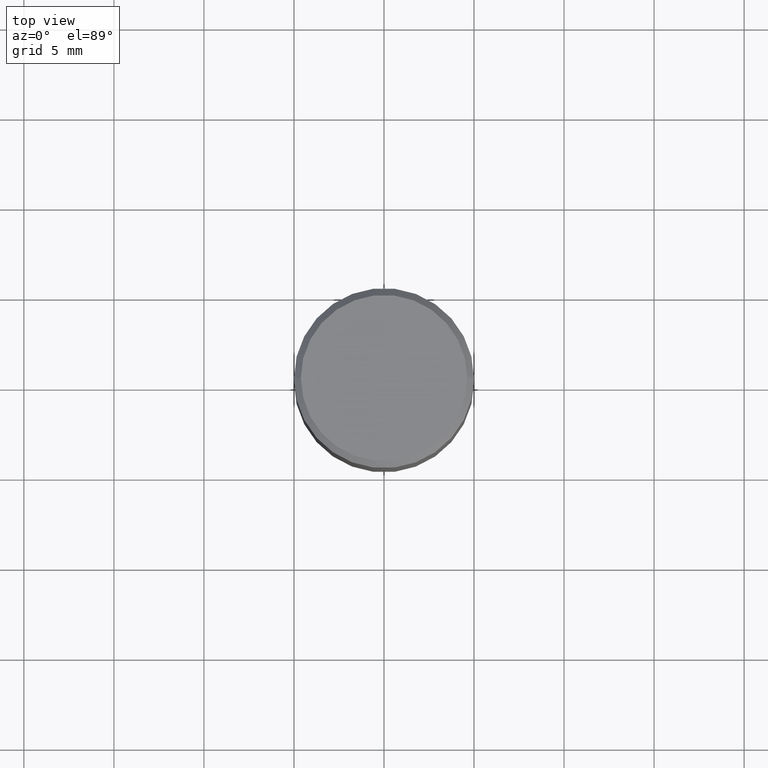
[diagram: clean part render]
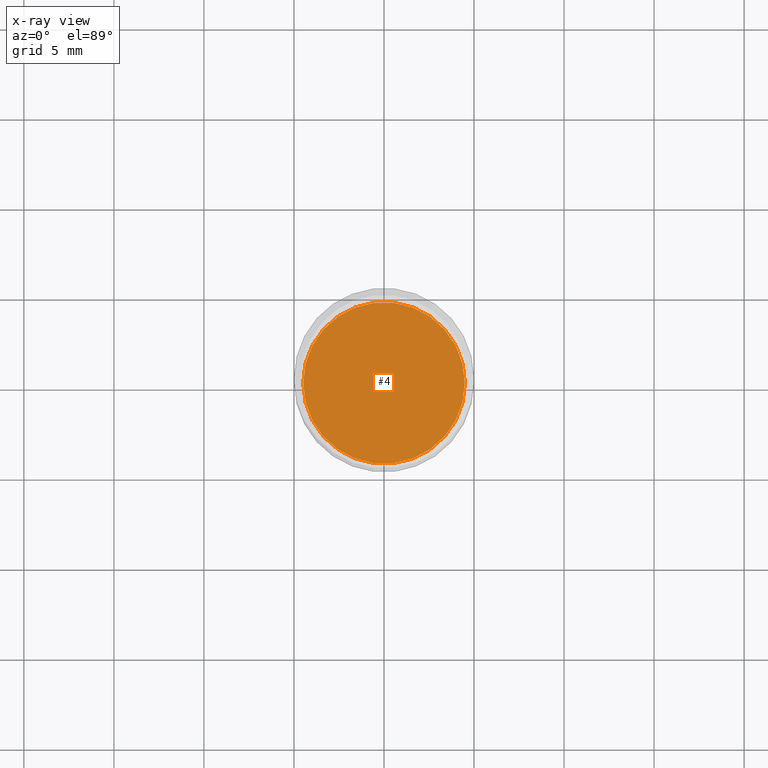
[diagram: x-ray — body ghosted, one internal face saturated and labeled with its STEP entity id]
A machine part, top view, then the same camera in x-ray: the body is ghosted and one INTERNAL B-rep face — a face not visible from any outside direction — is saturated and labeled: STEP entity #4.
In plain terms, the highlighted planar face has unit normal (-0, 0, 1).
Its self-contained STEP definition (entity closure, byte-faithful):
#4 = ADVANCED_FACE ( 'NONE', ( #360 ), #240, .F. ) ;
#40 = CARTESIAN_POINT ( 'NONE',  ( 1.550182676240758652E-29, -2.213250020692670577E-15, -0.6339000000000001300 ) ) ;
#43 = AXIS2_PLACEMENT_3D ( 'NONE', #380, #313, #175 ) ;
#77 = EDGE_CURVE ( 'NONE', #401, #154, #166, .T. ) ;
#107 = CARTESIAN_POINT ( 'NONE',  ( 0.1766500000000000015, -3.446790377705949964E-15, -0.6339000000000001300 ) ) ;
#154 = VERTEX_POINT ( 'NONE', #265 ) ;
#166 = CIRCLE ( 'NONE', #352, 0.1766500000000000015 ) ;
#175 = DIRECTION ( 'NONE',  ( 1.000000000000000000, -6.982962677686265922E-15, 4.876176775795935793E-29 ) ) ;
#188 = EDGE_LOOP ( 'NONE', ( #299, #303 ) ) ;
#208 = DIRECTION ( 'NONE',  ( -2.445468806185136597E-29, 3.491481338843145583E-15, 1.000000000000000000 ) ) ;
#229 = EDGE_CURVE ( 'NONE', #154, #401, #289, .T. ) ;
#240 = PLANE ( 'NONE',  #43 ) ;
#256 = AXIS2_PLACEMENT_3D ( 'NONE', #452, #208, #455 ) ;
#265 = CARTESIAN_POINT ( 'NONE',  ( -0.1766500000000000015, -9.554270507983421899E-16, -0.6339000000000001300 ) ) ;
#289 = CIRCLE ( 'NONE', #256, 0.1766500000000000015 ) ;
#299 = ORIENTED_EDGE ( 'NONE', *, *, #77, .F. ) ;
#303 = ORIENTED_EDGE ( 'NONE', *, *, #229, .F. ) ;
#313 = DIRECTION ( 'NONE',  ( -2.438088387897960049E-29, 3.491481338843145188E-15, 1.000000000000000000 ) ) ;
#335 = DIRECTION ( 'NONE',  ( 1.000000000000000000, -6.982962677686267499E-15, 0.000000000000000000 ) ) ;
#352 = AXIS2_PLACEMENT_3D ( 'NONE', #40, #366, #335 ) ;
#360 = FACE_OUTER_BOUND ( 'NONE', #188, .T. ) ;
#366 = DIRECTION ( 'NONE',  ( -2.445468806185136597E-29, 3.491481338843145583E-15, 1.000000000000000000 ) ) ;
#380 = CARTESIAN_POINT ( 'NONE',  ( 1.550182676240758652E-29, -2.213250020692670577E-15, -0.6339000000000001300 ) ) ;
#401 = VERTEX_POINT ( 'NONE', #107 ) ;
#452 = CARTESIAN_POINT ( 'NONE',  ( 1.550182676240758652E-29, -2.213250020692670577E-15, -0.6339000000000001300 ) ) ;
#455 = DIRECTION ( 'NONE',  ( 1.000000000000000000, -6.982962677686267499E-15, 0.000000000000000000 ) ) ;